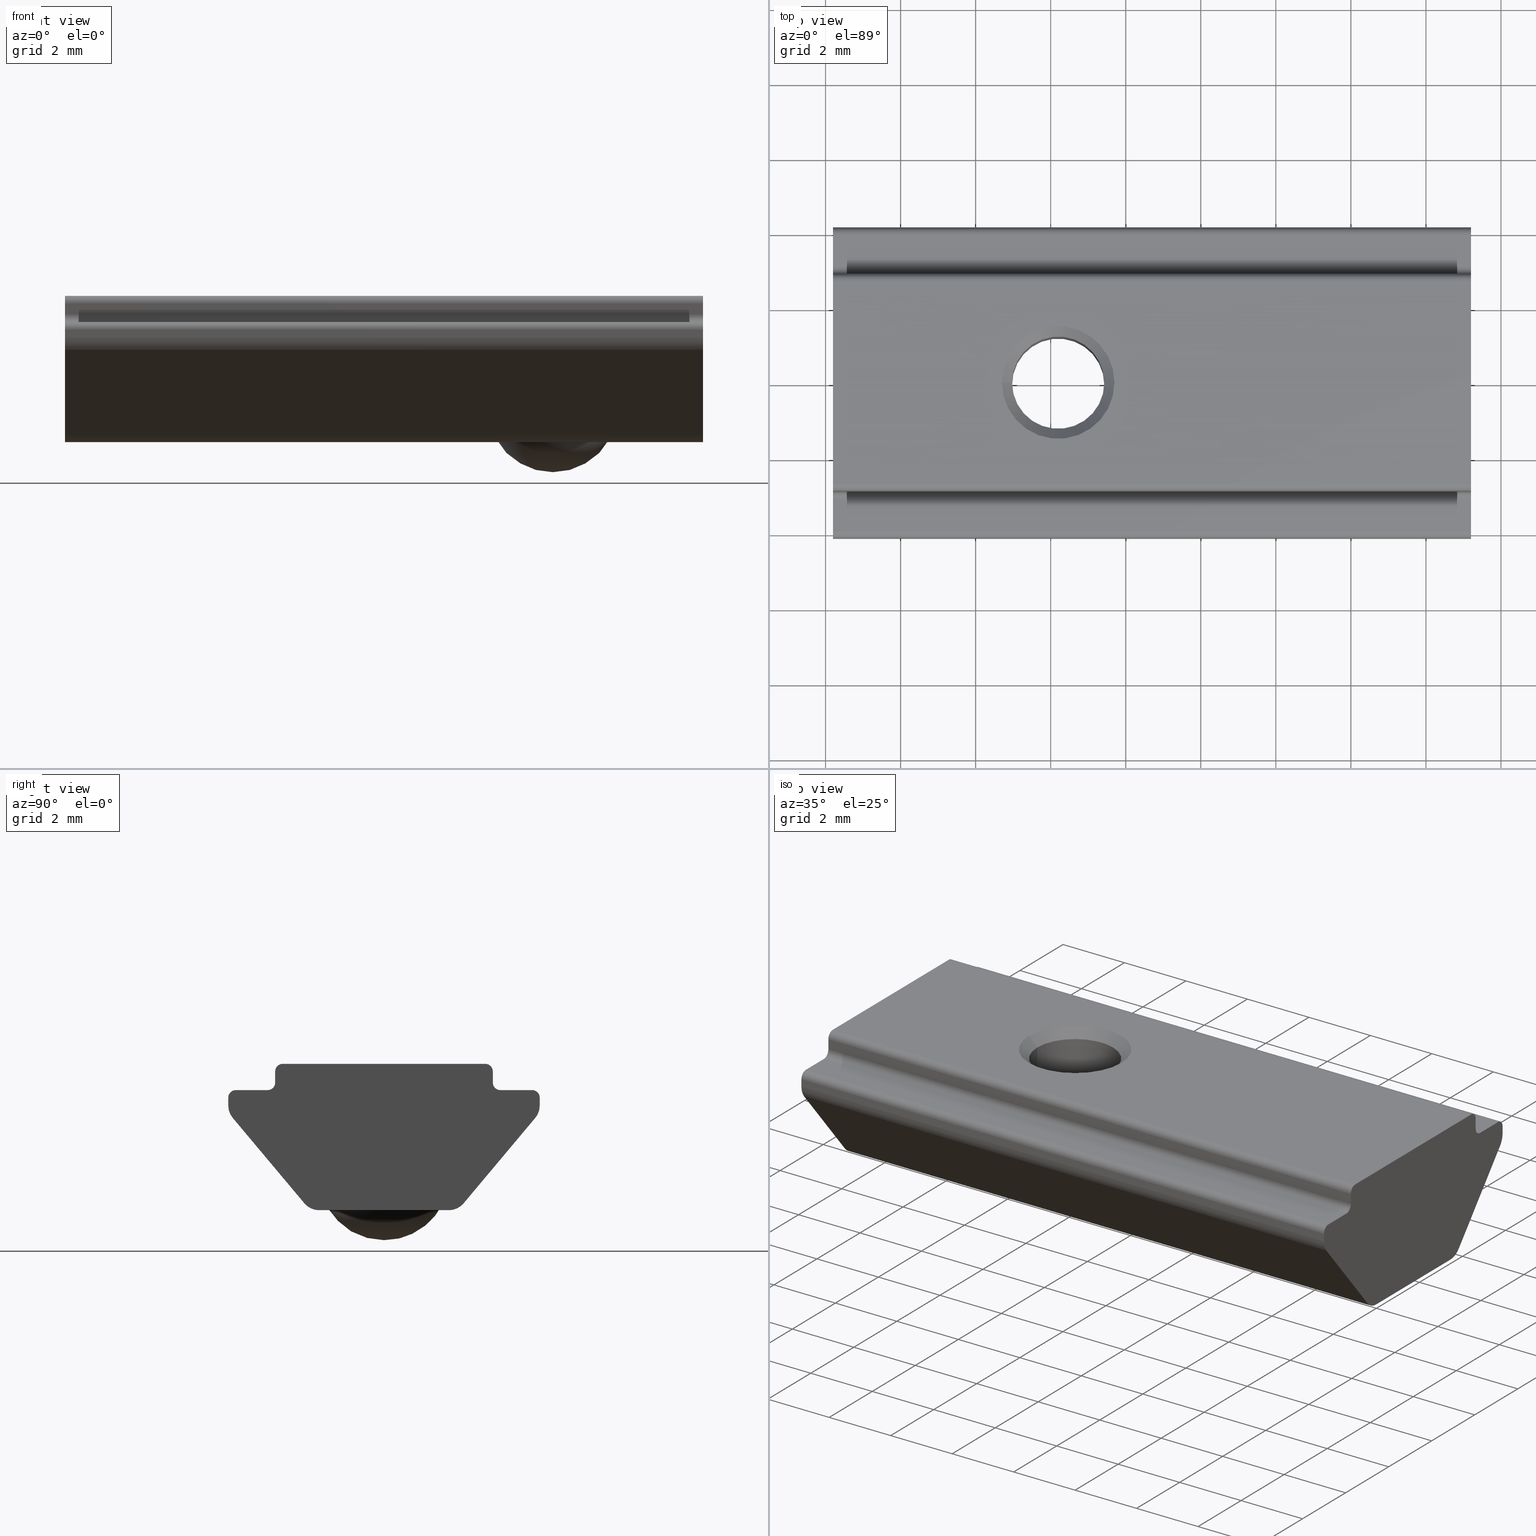
[diagram: canonical four-view strip — front | top / right | iso, engineering-drawing reading convention]
A machine part, canonical four-view strip (front | top / right | iso — engineering-drawing reading convention). The complete STEP part file that produces these views, byte-faithful:
ISO-10303-21;
HEADER;
/* Generated by software containing ST-Developer
 * from STEP Tools, Inc. (www.steptools.com) 
 */

FILE_DESCRIPTION(
/* description */ ('STEP AP214'),
/* implementation_level */ '2;1');

FILE_NAME(
/* name */ 'M3-2020-nut.step',
/* time_stamp */ '2024-09-27T19:50:09+02:00',
/* author */ (''),
/* organization */ (''),
/* preprocessor_version */ 'ST-DEVELOPER v20',
/* originating_system */ 'Autodesk Translation Framework v13.20.0.188',

/* authorisation */ '');

FILE_SCHEMA (('AUTOMOTIVE_DESIGN { 1 0 10303 214 3 1 1 }'));
ENDSEC;

DATA;
#10=MECHANICAL_DESIGN_GEOMETRIC_PRESENTATION_REPRESENTATION('',(#13),#960);
#11=SHAPE_REPRESENTATION_RELATIONSHIP('SRR','None',#967,#12);
#12=ADVANCED_BREP_SHAPE_REPRESENTATION('',(#14),#959);
#13=STYLED_ITEM('',(#977),#14);
#14=MANIFOLD_SOLID_BREP('Body1',#546);
#15=SPHERICAL_SURFACE('',#617,1.75);
#16=CONICAL_SURFACE('',#608,1.5,0.785398163397448);
#17=CONICAL_SURFACE('',#613,1.2295,0.785398163397449);
#18=B_SPLINE_CURVE_WITH_KNOTS('',3,(#801,#802,#803,#804,#805,#806,#807),
 .UNSPECIFIED.,.F.,.F.,(4,3,4),(-0.022314094032762,0.,0.0223140940327621),
 .UNSPECIFIED.);
#19=B_SPLINE_CURVE_WITH_KNOTS('',3,(#817,#818,#819,#820,#821,#822),
 .UNSPECIFIED.,.F.,.F.,(4,2,4),(0.294038686709126,0.316352780741888,0.33866687477465),
 .UNSPECIFIED.);
#20=CYLINDRICAL_SURFACE('',#564,0.499999999999999);
#21=CYLINDRICAL_SURFACE('',#567,0.499999999999998);
#22=CYLINDRICAL_SURFACE('',#573,0.499999999999989);
#23=CYLINDRICAL_SURFACE('',#577,0.2);
#24=CYLINDRICAL_SURFACE('',#581,0.200000000000001);
#25=CYLINDRICAL_SURFACE('',#585,0.2);
#26=CYLINDRICAL_SURFACE('',#590,0.2);
#27=CYLINDRICAL_SURFACE('',#594,0.200000000000001);
#28=CYLINDRICAL_SURFACE('',#598,0.199999999999999);
#29=CYLINDRICAL_SURFACE('',#602,0.499999999999994);
#30=CYLINDRICAL_SURFACE('',#611,1.2295);
#31=CYLINDRICAL_SURFACE('',#614,1.75);
#32=FACE_BOUND('',#63,.T.);
#33=FACE_BOUND('',#76,.T.);
#34=FACE_OUTER_BOUND('',#62,.T.);
#35=FACE_OUTER_BOUND('',#64,.T.);
#36=FACE_OUTER_BOUND('',#65,.T.);
#37=FACE_OUTER_BOUND('',#66,.T.);
#38=FACE_OUTER_BOUND('',#67,.T.);
#39=FACE_OUTER_BOUND('',#68,.T.);
#40=FACE_OUTER_BOUND('',#69,.T.);
#41=FACE_OUTER_BOUND('',#70,.T.);
#42=FACE_OUTER_BOUND('',#71,.T.);
#43=FACE_OUTER_BOUND('',#72,.T.);
#44=FACE_OUTER_BOUND('',#73,.T.);
#45=FACE_OUTER_BOUND('',#74,.T.);
#46=FACE_OUTER_BOUND('',#75,.T.);
#47=FACE_OUTER_BOUND('',#77,.T.);
#48=FACE_OUTER_BOUND('',#78,.T.);
#49=FACE_OUTER_BOUND('',#79,.T.);
#50=FACE_OUTER_BOUND('',#80,.T.);
#51=FACE_OUTER_BOUND('',#81,.T.);
#52=FACE_OUTER_BOUND('',#82,.T.);
#53=FACE_OUTER_BOUND('',#83,.T.);
#54=FACE_OUTER_BOUND('',#84,.T.);
#55=FACE_OUTER_BOUND('',#85,.T.);
#56=FACE_OUTER_BOUND('',#86,.T.);
#57=FACE_OUTER_BOUND('',#87,.T.);
#58=FACE_OUTER_BOUND('',#88,.T.);
#59=FACE_OUTER_BOUND('',#89,.T.);
#60=FACE_OUTER_BOUND('',#90,.T.);
#61=FACE_OUTER_BOUND('',#91,.T.);
#62=EDGE_LOOP('',(#347,#348,#349,#350,#351));
#63=EDGE_LOOP('',(#352));
#64=EDGE_LOOP('',(#353,#354,#355,#356,#357,#358));
#65=EDGE_LOOP('',(#359,#360,#361,#362,#363,#364));
#66=EDGE_LOOP('',(#365,#366,#367,#368));
#67=EDGE_LOOP('',(#369,#370,#371,#372));
#68=EDGE_LOOP('',(#373,#374,#375,#376));
#69=EDGE_LOOP('',(#377,#378,#379,#380));
#70=EDGE_LOOP('',(#381,#382,#383,#384));
#71=EDGE_LOOP('',(#385,#386,#387,#388));
#72=EDGE_LOOP('',(#389,#390,#391,#392));
#73=EDGE_LOOP('',(#393,#394,#395,#396));
#74=EDGE_LOOP('',(#397,#398,#399,#400));
#75=EDGE_LOOP('',(#401,#402,#403,#404));
#76=EDGE_LOOP('',(#405));
#77=EDGE_LOOP('',(#406,#407,#408,#409));
#78=EDGE_LOOP('',(#410,#411,#412,#413));
#79=EDGE_LOOP('',(#414,#415,#416,#417));
#80=EDGE_LOOP('',(#418,#419,#420,#421));
#81=EDGE_LOOP('',(#422,#423,#424,#425));
#82=EDGE_LOOP('',(#426,#427,#428,#429));
#83=EDGE_LOOP('',(#430,#431,#432,#433));
#84=EDGE_LOOP('',(#434,#435,#436,#437));
#85=EDGE_LOOP('',(#438,#439,#440,#441,#442,#443,#444,#445,#446,#447,#448,
#449,#450,#451,#452,#453,#454,#455,#456,#457));
#86=EDGE_LOOP('',(#458,#459,#460,#461,#462,#463,#464,#465,#466,#467,#468,
#469,#470,#471,#472,#473,#474,#475,#476,#477));
#87=EDGE_LOOP('',(#478,#479,#480,#481,#482));
#88=EDGE_LOOP('',(#483,#484,#485,#486,#487));
#89=EDGE_LOOP('',(#488,#489,#490,#491));
#90=EDGE_LOOP('',(#492,#493,#494,#495,#496,#497,#498,#499,#500));
#91=EDGE_LOOP('',(#501,#502,#503,#504));
#92=LINE('',#793,#138);
#93=LINE('',#795,#139);
#94=LINE('',#796,#140);
#95=LINE('',#809,#141);
#96=LINE('',#813,#142);
#97=LINE('',#826,#143);
#98=LINE('',#829,#144);
#99=LINE('',#832,#145);
#100=LINE('',#835,#146);
#101=LINE('',#837,#147);
#102=LINE('',#838,#148);
#103=LINE('',#843,#149);
#104=LINE('',#847,#150);
#105=LINE('',#849,#151);
#106=LINE('',#850,#152);
#107=LINE('',#855,#153);
#108=LINE('',#859,#154);
#109=LINE('',#861,#155);
#110=LINE('',#862,#156);
#111=LINE('',#867,#157);
#112=LINE('',#871,#158);
#113=LINE('',#873,#159);
#114=LINE('',#874,#160);
#115=LINE('',#879,#161);
#116=LINE('',#883,#162);
#117=LINE('',#885,#163);
#118=LINE('',#886,#164);
#119=LINE('',#893,#165);
#120=LINE('',#897,#166);
#121=LINE('',#899,#167);
#122=LINE('',#900,#168);
#123=LINE('',#905,#169);
#124=LINE('',#909,#170);
#125=LINE('',#911,#171);
#126=LINE('',#912,#172);
#127=LINE('',#917,#173);
#128=LINE('',#921,#174);
#129=LINE('',#923,#175);
#130=LINE('',#924,#176);
#131=LINE('',#929,#177);
#132=LINE('',#932,#178);
#133=LINE('',#933,#179);
#134=LINE('',#941,#180);
#135=LINE('',#944,#181);
#136=LINE('',#947,#182);
#137=LINE('',#950,#183);
#138=VECTOR('',#627,1000.);
#139=VECTOR('',#628,1000.);
#140=VECTOR('',#629,1000.);
#141=VECTOR('',#634,1000.);
#142=VECTOR('',#637,1000.);
#143=VECTOR('',#644,1000.);
#144=VECTOR('',#647,1000.);
#145=VECTOR('',#652,1000.);
#146=VECTOR('',#655,1000.);
#147=VECTOR('',#656,1000.);
#148=VECTOR('',#657,1000.);
#149=VECTOR('',#662,1000.);
#150=VECTOR('',#667,1000.);
#151=VECTOR('',#668,1000.);
#152=VECTOR('',#669,1000.);
#153=VECTOR('',#674,1000.);
#154=VECTOR('',#679,1000.);
#155=VECTOR('',#680,1000.);
#156=VECTOR('',#681,1000.);
#157=VECTOR('',#686,1000.);
#158=VECTOR('',#691,1000.);
#159=VECTOR('',#692,1000.);
#160=VECTOR('',#693,1000.);
#161=VECTOR('',#698,1000.);
#162=VECTOR('',#703,1000.);
#163=VECTOR('',#704,1000.);
#164=VECTOR('',#705,1000.);
#165=VECTOR('',#712,1000.);
#166=VECTOR('',#717,1000.);
#167=VECTOR('',#718,1000.);
#168=VECTOR('',#719,1000.);
#169=VECTOR('',#724,1000.);
#170=VECTOR('',#729,1000.);
#171=VECTOR('',#730,1000.);
#172=VECTOR('',#731,1000.);
#173=VECTOR('',#736,1000.);
#174=VECTOR('',#741,1000.);
#175=VECTOR('',#742,1000.);
#176=VECTOR('',#743,1000.);
#177=VECTOR('',#748,1000.);
#178=VECTOR('',#753,1000.);
#179=VECTOR('',#754,1000.);
#180=VECTOR('',#765,1.5);
#181=VECTOR('',#768,1.2295);
#182=VECTOR('',#773,1.2295);
#183=VECTOR('',#776,1.75);
#184=CIRCLE('',#561,1.75);
#185=CIRCLE('',#562,1.75);
#186=CIRCLE('',#563,1.5);
#187=CIRCLE('',#565,0.499999999999999);
#188=CIRCLE('',#566,0.499999999999999);
#189=CIRCLE('',#568,0.499999999999998);
#190=CIRCLE('',#569,0.499999999999998);
#191=CIRCLE('',#571,1.75);
#192=CIRCLE('',#574,0.499999999999989);
#193=CIRCLE('',#575,0.499999999999989);
#194=CIRCLE('',#578,0.2);
#195=CIRCLE('',#579,0.2);
#196=CIRCLE('',#582,0.200000000000001);
#197=CIRCLE('',#583,0.200000000000001);
#198=CIRCLE('',#586,0.2);
#199=CIRCLE('',#587,0.2);
#200=CIRCLE('',#589,1.5);
#201=CIRCLE('',#591,0.2);
#202=CIRCLE('',#592,0.2);
#203=CIRCLE('',#595,0.200000000000001);
#204=CIRCLE('',#596,0.200000000000001);
#205=CIRCLE('',#599,0.199999999999999);
#206=CIRCLE('',#600,0.199999999999999);
#207=CIRCLE('',#603,0.499999999999994);
#208=CIRCLE('',#604,0.499999999999994);
#209=CIRCLE('',#609,1.2295);
#210=CIRCLE('',#610,1.2295);
#211=CIRCLE('',#612,1.2295);
#212=CIRCLE('',#615,1.75);
#213=CIRCLE('',#616,1.75);
#214=CIRCLE('',#618,1.75);
#215=VERTEX_POINT('',#787);
#216=VERTEX_POINT('',#788);
#217=VERTEX_POINT('',#790);
#218=VERTEX_POINT('',#792);
#219=VERTEX_POINT('',#794);
#220=VERTEX_POINT('',#797);
#221=VERTEX_POINT('',#800);
#222=VERTEX_POINT('',#808);
#223=VERTEX_POINT('',#810);
#224=VERTEX_POINT('',#812);
#225=VERTEX_POINT('',#816);
#226=VERTEX_POINT('',#823);
#227=VERTEX_POINT('',#825);
#228=VERTEX_POINT('',#827);
#229=VERTEX_POINT('',#834);
#230=VERTEX_POINT('',#836);
#231=VERTEX_POINT('',#840);
#232=VERTEX_POINT('',#842);
#233=VERTEX_POINT('',#846);
#234=VERTEX_POINT('',#848);
#235=VERTEX_POINT('',#852);
#236=VERTEX_POINT('',#854);
#237=VERTEX_POINT('',#858);
#238=VERTEX_POINT('',#860);
#239=VERTEX_POINT('',#864);
#240=VERTEX_POINT('',#866);
#241=VERTEX_POINT('',#870);
#242=VERTEX_POINT('',#872);
#243=VERTEX_POINT('',#876);
#244=VERTEX_POINT('',#878);
#245=VERTEX_POINT('',#882);
#246=VERTEX_POINT('',#884);
#247=VERTEX_POINT('',#887);
#248=VERTEX_POINT('',#890);
#249=VERTEX_POINT('',#892);
#250=VERTEX_POINT('',#896);
#251=VERTEX_POINT('',#898);
#252=VERTEX_POINT('',#902);
#253=VERTEX_POINT('',#904);
#254=VERTEX_POINT('',#908);
#255=VERTEX_POINT('',#910);
#256=VERTEX_POINT('',#914);
#257=VERTEX_POINT('',#916);
#258=VERTEX_POINT('',#920);
#259=VERTEX_POINT('',#922);
#260=VERTEX_POINT('',#926);
#261=VERTEX_POINT('',#928);
#262=VERTEX_POINT('',#937);
#263=VERTEX_POINT('',#938);
#264=VERTEX_POINT('',#943);
#265=VERTEX_POINT('',#949);
#266=VERTEX_POINT('',#951);
#267=VERTEX_POINT('',#955);
#268=EDGE_CURVE('',#215,#216,#184,.T.);
#269=EDGE_CURVE('',#216,#217,#185,.T.);
#270=EDGE_CURVE('',#218,#217,#92,.T.);
#271=EDGE_CURVE('',#219,#218,#93,.T.);
#272=EDGE_CURVE('',#219,#215,#94,.T.);
#273=EDGE_CURVE('',#220,#220,#186,.T.);
#274=EDGE_CURVE('',#217,#221,#18,.T.);
#275=EDGE_CURVE('',#221,#222,#95,.T.);
#276=EDGE_CURVE('',#222,#223,#187,.T.);
#277=EDGE_CURVE('',#224,#223,#96,.T.);
#278=EDGE_CURVE('',#218,#224,#188,.T.);
#279=EDGE_CURVE('',#215,#225,#19,.T.);
#280=EDGE_CURVE('',#226,#219,#189,.T.);
#281=EDGE_CURVE('',#226,#227,#97,.T.);
#282=EDGE_CURVE('',#227,#228,#190,.T.);
#283=EDGE_CURVE('',#225,#228,#98,.T.);
#284=EDGE_CURVE('',#221,#225,#191,.T.);
#285=EDGE_CURVE('',#228,#222,#99,.T.);
#286=EDGE_CURVE('',#223,#229,#100,.T.);
#287=EDGE_CURVE('',#230,#229,#101,.T.);
#288=EDGE_CURVE('',#224,#230,#102,.T.);
#289=EDGE_CURVE('',#229,#231,#192,.T.);
#290=EDGE_CURVE('',#232,#231,#103,.T.);
#291=EDGE_CURVE('',#230,#232,#193,.T.);
#292=EDGE_CURVE('',#231,#233,#104,.T.);
#293=EDGE_CURVE('',#234,#233,#105,.T.);
#294=EDGE_CURVE('',#232,#234,#106,.T.);
#295=EDGE_CURVE('',#233,#235,#194,.T.);
#296=EDGE_CURVE('',#236,#235,#107,.T.);
#297=EDGE_CURVE('',#234,#236,#195,.T.);
#298=EDGE_CURVE('',#235,#237,#108,.T.);
#299=EDGE_CURVE('',#238,#237,#109,.T.);
#300=EDGE_CURVE('',#236,#238,#110,.T.);
#301=EDGE_CURVE('',#239,#237,#196,.T.);
#302=EDGE_CURVE('',#240,#239,#111,.T.);
#303=EDGE_CURVE('',#240,#238,#197,.T.);
#304=EDGE_CURVE('',#239,#241,#112,.T.);
#305=EDGE_CURVE('',#242,#241,#113,.T.);
#306=EDGE_CURVE('',#240,#242,#114,.T.);
#307=EDGE_CURVE('',#241,#243,#198,.T.);
#308=EDGE_CURVE('',#244,#243,#115,.T.);
#309=EDGE_CURVE('',#242,#244,#199,.T.);
#310=EDGE_CURVE('',#243,#245,#116,.T.);
#311=EDGE_CURVE('',#246,#245,#117,.T.);
#312=EDGE_CURVE('',#244,#246,#118,.T.);
#313=EDGE_CURVE('',#247,#247,#200,.T.);
#314=EDGE_CURVE('',#245,#248,#201,.T.);
#315=EDGE_CURVE('',#249,#248,#119,.T.);
#316=EDGE_CURVE('',#246,#249,#202,.T.);
#317=EDGE_CURVE('',#248,#250,#120,.T.);
#318=EDGE_CURVE('',#251,#250,#121,.T.);
#319=EDGE_CURVE('',#249,#251,#122,.T.);
#320=EDGE_CURVE('',#252,#250,#203,.T.);
#321=EDGE_CURVE('',#253,#252,#123,.T.);
#322=EDGE_CURVE('',#253,#251,#204,.T.);
#323=EDGE_CURVE('',#252,#254,#124,.T.);
#324=EDGE_CURVE('',#255,#254,#125,.T.);
#325=EDGE_CURVE('',#253,#255,#126,.T.);
#326=EDGE_CURVE('',#254,#256,#205,.T.);
#327=EDGE_CURVE('',#257,#256,#127,.T.);
#328=EDGE_CURVE('',#255,#257,#206,.T.);
#329=EDGE_CURVE('',#256,#258,#128,.T.);
#330=EDGE_CURVE('',#259,#258,#129,.T.);
#331=EDGE_CURVE('',#257,#259,#130,.T.);
#332=EDGE_CURVE('',#258,#260,#207,.T.);
#333=EDGE_CURVE('',#261,#260,#131,.T.);
#334=EDGE_CURVE('',#259,#261,#208,.T.);
#335=EDGE_CURVE('',#260,#227,#132,.T.);
#336=EDGE_CURVE('',#261,#226,#133,.T.);
#337=EDGE_CURVE('',#262,#263,#209,.T.);
#338=EDGE_CURVE('',#263,#262,#210,.T.);
#339=EDGE_CURVE('',#262,#220,#134,.T.);
#340=EDGE_CURVE('',#263,#264,#135,.T.);
#341=EDGE_CURVE('',#264,#264,#211,.T.);
#342=EDGE_CURVE('',#264,#247,#136,.T.);
#343=EDGE_CURVE('',#216,#265,#137,.T.);
#344=EDGE_CURVE('',#265,#266,#212,.T.);
#345=EDGE_CURVE('',#266,#265,#213,.T.);
#346=EDGE_CURVE('',#266,#267,#214,.T.);
#347=ORIENTED_EDGE('',*,*,#268,.T.);
#348=ORIENTED_EDGE('',*,*,#269,.T.);
#349=ORIENTED_EDGE('',*,*,#270,.F.);
#350=ORIENTED_EDGE('',*,*,#271,.F.);
#351=ORIENTED_EDGE('',*,*,#272,.T.);
#352=ORIENTED_EDGE('',*,*,#273,.T.);
#353=ORIENTED_EDGE('',*,*,#274,.T.);
#354=ORIENTED_EDGE('',*,*,#275,.T.);
#355=ORIENTED_EDGE('',*,*,#276,.T.);
#356=ORIENTED_EDGE('',*,*,#277,.F.);
#357=ORIENTED_EDGE('',*,*,#278,.F.);
#358=ORIENTED_EDGE('',*,*,#270,.T.);
#359=ORIENTED_EDGE('',*,*,#279,.F.);
#360=ORIENTED_EDGE('',*,*,#272,.F.);
#361=ORIENTED_EDGE('',*,*,#280,.F.);
#362=ORIENTED_EDGE('',*,*,#281,.T.);
#363=ORIENTED_EDGE('',*,*,#282,.T.);
#364=ORIENTED_EDGE('',*,*,#283,.F.);
#365=ORIENTED_EDGE('',*,*,#284,.T.);
#366=ORIENTED_EDGE('',*,*,#283,.T.);
#367=ORIENTED_EDGE('',*,*,#285,.T.);
#368=ORIENTED_EDGE('',*,*,#275,.F.);
#369=ORIENTED_EDGE('',*,*,#286,.T.);
#370=ORIENTED_EDGE('',*,*,#287,.F.);
#371=ORIENTED_EDGE('',*,*,#288,.F.);
#372=ORIENTED_EDGE('',*,*,#277,.T.);
#373=ORIENTED_EDGE('',*,*,#289,.T.);
#374=ORIENTED_EDGE('',*,*,#290,.F.);
#375=ORIENTED_EDGE('',*,*,#291,.F.);
#376=ORIENTED_EDGE('',*,*,#287,.T.);
#377=ORIENTED_EDGE('',*,*,#292,.T.);
#378=ORIENTED_EDGE('',*,*,#293,.F.);
#379=ORIENTED_EDGE('',*,*,#294,.F.);
#380=ORIENTED_EDGE('',*,*,#290,.T.);
#381=ORIENTED_EDGE('',*,*,#295,.T.);
#382=ORIENTED_EDGE('',*,*,#296,.F.);
#383=ORIENTED_EDGE('',*,*,#297,.F.);
#384=ORIENTED_EDGE('',*,*,#293,.T.);
#385=ORIENTED_EDGE('',*,*,#298,.T.);
#386=ORIENTED_EDGE('',*,*,#299,.F.);
#387=ORIENTED_EDGE('',*,*,#300,.F.);
#388=ORIENTED_EDGE('',*,*,#296,.T.);
#389=ORIENTED_EDGE('',*,*,#301,.F.);
#390=ORIENTED_EDGE('',*,*,#302,.F.);
#391=ORIENTED_EDGE('',*,*,#303,.T.);
#392=ORIENTED_EDGE('',*,*,#299,.T.);
#393=ORIENTED_EDGE('',*,*,#304,.T.);
#394=ORIENTED_EDGE('',*,*,#305,.F.);
#395=ORIENTED_EDGE('',*,*,#306,.F.);
#396=ORIENTED_EDGE('',*,*,#302,.T.);
#397=ORIENTED_EDGE('',*,*,#307,.T.);
#398=ORIENTED_EDGE('',*,*,#308,.F.);
#399=ORIENTED_EDGE('',*,*,#309,.F.);
#400=ORIENTED_EDGE('',*,*,#305,.T.);
#401=ORIENTED_EDGE('',*,*,#310,.T.);
#402=ORIENTED_EDGE('',*,*,#311,.F.);
#403=ORIENTED_EDGE('',*,*,#312,.F.);
#404=ORIENTED_EDGE('',*,*,#308,.T.);
#405=ORIENTED_EDGE('',*,*,#313,.F.);
#406=ORIENTED_EDGE('',*,*,#314,.T.);
#407=ORIENTED_EDGE('',*,*,#315,.F.);
#408=ORIENTED_EDGE('',*,*,#316,.F.);
#409=ORIENTED_EDGE('',*,*,#311,.T.);
#410=ORIENTED_EDGE('',*,*,#317,.T.);
#411=ORIENTED_EDGE('',*,*,#318,.F.);
#412=ORIENTED_EDGE('',*,*,#319,.F.);
#413=ORIENTED_EDGE('',*,*,#315,.T.);
#414=ORIENTED_EDGE('',*,*,#320,.F.);
#415=ORIENTED_EDGE('',*,*,#321,.F.);
#416=ORIENTED_EDGE('',*,*,#322,.T.);
#417=ORIENTED_EDGE('',*,*,#318,.T.);
#418=ORIENTED_EDGE('',*,*,#323,.T.);
#419=ORIENTED_EDGE('',*,*,#324,.F.);
#420=ORIENTED_EDGE('',*,*,#325,.F.);
#421=ORIENTED_EDGE('',*,*,#321,.T.);
#422=ORIENTED_EDGE('',*,*,#326,.T.);
#423=ORIENTED_EDGE('',*,*,#327,.F.);
#424=ORIENTED_EDGE('',*,*,#328,.F.);
#425=ORIENTED_EDGE('',*,*,#324,.T.);
#426=ORIENTED_EDGE('',*,*,#329,.T.);
#427=ORIENTED_EDGE('',*,*,#330,.F.);
#428=ORIENTED_EDGE('',*,*,#331,.F.);
#429=ORIENTED_EDGE('',*,*,#327,.T.);
#430=ORIENTED_EDGE('',*,*,#332,.T.);
#431=ORIENTED_EDGE('',*,*,#333,.F.);
#432=ORIENTED_EDGE('',*,*,#334,.F.);
#433=ORIENTED_EDGE('',*,*,#330,.T.);
#434=ORIENTED_EDGE('',*,*,#335,.T.);
#435=ORIENTED_EDGE('',*,*,#281,.F.);
#436=ORIENTED_EDGE('',*,*,#336,.F.);
#437=ORIENTED_EDGE('',*,*,#333,.T.);
#438=ORIENTED_EDGE('',*,*,#271,.T.);
#439=ORIENTED_EDGE('',*,*,#278,.T.);
#440=ORIENTED_EDGE('',*,*,#288,.T.);
#441=ORIENTED_EDGE('',*,*,#291,.T.);
#442=ORIENTED_EDGE('',*,*,#294,.T.);
#443=ORIENTED_EDGE('',*,*,#297,.T.);
#444=ORIENTED_EDGE('',*,*,#300,.T.);
#445=ORIENTED_EDGE('',*,*,#303,.F.);
#446=ORIENTED_EDGE('',*,*,#306,.T.);
#447=ORIENTED_EDGE('',*,*,#309,.T.);
#448=ORIENTED_EDGE('',*,*,#312,.T.);
#449=ORIENTED_EDGE('',*,*,#316,.T.);
#450=ORIENTED_EDGE('',*,*,#319,.T.);
#451=ORIENTED_EDGE('',*,*,#322,.F.);
#452=ORIENTED_EDGE('',*,*,#325,.T.);
#453=ORIENTED_EDGE('',*,*,#328,.T.);
#454=ORIENTED_EDGE('',*,*,#331,.T.);
#455=ORIENTED_EDGE('',*,*,#334,.T.);
#456=ORIENTED_EDGE('',*,*,#336,.T.);
#457=ORIENTED_EDGE('',*,*,#280,.T.);
#458=ORIENTED_EDGE('',*,*,#285,.F.);
#459=ORIENTED_EDGE('',*,*,#282,.F.);
#460=ORIENTED_EDGE('',*,*,#335,.F.);
#461=ORIENTED_EDGE('',*,*,#332,.F.);
#462=ORIENTED_EDGE('',*,*,#329,.F.);
#463=ORIENTED_EDGE('',*,*,#326,.F.);
#464=ORIENTED_EDGE('',*,*,#323,.F.);
#465=ORIENTED_EDGE('',*,*,#320,.T.);
#466=ORIENTED_EDGE('',*,*,#317,.F.);
#467=ORIENTED_EDGE('',*,*,#314,.F.);
#468=ORIENTED_EDGE('',*,*,#310,.F.);
#469=ORIENTED_EDGE('',*,*,#307,.F.);
#470=ORIENTED_EDGE('',*,*,#304,.F.);
#471=ORIENTED_EDGE('',*,*,#301,.T.);
#472=ORIENTED_EDGE('',*,*,#298,.F.);
#473=ORIENTED_EDGE('',*,*,#295,.F.);
#474=ORIENTED_EDGE('',*,*,#292,.F.);
#475=ORIENTED_EDGE('',*,*,#289,.F.);
#476=ORIENTED_EDGE('',*,*,#286,.F.);
#477=ORIENTED_EDGE('',*,*,#276,.F.);
#478=ORIENTED_EDGE('',*,*,#337,.T.);
#479=ORIENTED_EDGE('',*,*,#338,.T.);
#480=ORIENTED_EDGE('',*,*,#339,.T.);
#481=ORIENTED_EDGE('',*,*,#273,.F.);
#482=ORIENTED_EDGE('',*,*,#339,.F.);
#483=ORIENTED_EDGE('',*,*,#337,.F.);
#484=ORIENTED_EDGE('',*,*,#338,.F.);
#485=ORIENTED_EDGE('',*,*,#340,.T.);
#486=ORIENTED_EDGE('',*,*,#341,.T.);
#487=ORIENTED_EDGE('',*,*,#340,.F.);
#488=ORIENTED_EDGE('',*,*,#341,.F.);
#489=ORIENTED_EDGE('',*,*,#342,.T.);
#490=ORIENTED_EDGE('',*,*,#313,.T.);
#491=ORIENTED_EDGE('',*,*,#342,.F.);
#492=ORIENTED_EDGE('',*,*,#274,.F.);
#493=ORIENTED_EDGE('',*,*,#269,.F.);
#494=ORIENTED_EDGE('',*,*,#343,.T.);
#495=ORIENTED_EDGE('',*,*,#344,.T.);
#496=ORIENTED_EDGE('',*,*,#345,.T.);
#497=ORIENTED_EDGE('',*,*,#343,.F.);
#498=ORIENTED_EDGE('',*,*,#268,.F.);
#499=ORIENTED_EDGE('',*,*,#279,.T.);
#500=ORIENTED_EDGE('',*,*,#284,.F.);
#501=ORIENTED_EDGE('',*,*,#344,.F.);
#502=ORIENTED_EDGE('',*,*,#345,.F.);
#503=ORIENTED_EDGE('',*,*,#346,.T.);
#504=ORIENTED_EDGE('',*,*,#346,.F.);
#505=PLANE('',#560);
#506=PLANE('',#570);
#507=PLANE('',#572);
#508=PLANE('',#576);
#509=PLANE('',#580);
#510=PLANE('',#584);
#511=PLANE('',#588);
#512=PLANE('',#593);
#513=PLANE('',#597);
#514=PLANE('',#601);
#515=PLANE('',#605);
#516=PLANE('',#606);
#517=PLANE('',#607);
#518=ADVANCED_FACE('',(#34,#32),#505,.F.);
#519=ADVANCED_FACE('',(#35),#20,.T.);
#520=ADVANCED_FACE('',(#36),#21,.T.);
#521=ADVANCED_FACE('',(#37),#506,.F.);
#522=ADVANCED_FACE('',(#38),#507,.F.);
#523=ADVANCED_FACE('',(#39),#22,.T.);
#524=ADVANCED_FACE('',(#40),#508,.F.);
#525=ADVANCED_FACE('',(#41),#23,.T.);
#526=ADVANCED_FACE('',(#42),#509,.F.);
#527=ADVANCED_FACE('',(#43),#24,.F.);
#528=ADVANCED_FACE('',(#44),#510,.F.);
#529=ADVANCED_FACE('',(#45),#25,.T.);
#530=ADVANCED_FACE('',(#46,#33),#511,.F.);
#531=ADVANCED_FACE('',(#47),#26,.T.);
#532=ADVANCED_FACE('',(#48),#512,.F.);
#533=ADVANCED_FACE('',(#49),#27,.F.);
#534=ADVANCED_FACE('',(#50),#513,.F.);
#535=ADVANCED_FACE('',(#51),#28,.T.);
#536=ADVANCED_FACE('',(#52),#514,.F.);
#537=ADVANCED_FACE('',(#53),#29,.T.);
#538=ADVANCED_FACE('',(#54),#515,.F.);
#539=ADVANCED_FACE('',(#55),#516,.T.);
#540=ADVANCED_FACE('',(#56),#517,.F.);
#541=ADVANCED_FACE('',(#57),#16,.F.);
#542=ADVANCED_FACE('',(#58),#30,.F.);
#543=ADVANCED_FACE('',(#59),#17,.F.);
#544=ADVANCED_FACE('',(#60),#31,.F.);
#545=ADVANCED_FACE('',(#61),#15,.T.);
#546=CLOSED_SHELL('',(#518,#519,#520,#521,#522,#523,#524,#525,#526,#527,
#528,#529,#530,#531,#532,#533,#534,#535,#536,#537,#538,#539,#540,#541,#542,
#543,#544,#545));
#547=DERIVED_UNIT_ELEMENT(#549,1.);
#548=DERIVED_UNIT_ELEMENT(#962,-3.);
#549=(
MASS_UNIT()
NAMED_UNIT(*)
SI_UNIT(.KILO.,.GRAM.)
);
#550=DERIVED_UNIT((#547,#548));
#551=MEASURE_REPRESENTATION_ITEM('density measure',
POSITIVE_RATIO_MEASURE(7850.),#550);
#552=PROPERTY_DEFINITION_REPRESENTATION(#557,#554);
#553=PROPERTY_DEFINITION_REPRESENTATION(#558,#555);
#554=REPRESENTATION('material name',(#556),#959);
#555=REPRESENTATION('density',(#551),#959);
#556=DESCRIPTIVE_REPRESENTATION_ITEM('Steel','Steel');
#557=PROPERTY_DEFINITION('material property','material name',#969);
#558=PROPERTY_DEFINITION('material property','density of part',#969);
#559=AXIS2_PLACEMENT_3D('',#785,#619,#620);
#560=AXIS2_PLACEMENT_3D('',#786,#621,#622);
#561=AXIS2_PLACEMENT_3D('',#789,#623,#624);
#562=AXIS2_PLACEMENT_3D('',#791,#625,#626);
#563=AXIS2_PLACEMENT_3D('',#798,#630,#631);
#564=AXIS2_PLACEMENT_3D('',#799,#632,#633);
#565=AXIS2_PLACEMENT_3D('',#811,#635,#636);
#566=AXIS2_PLACEMENT_3D('',#814,#638,#639);
#567=AXIS2_PLACEMENT_3D('',#815,#640,#641);
#568=AXIS2_PLACEMENT_3D('',#824,#642,#643);
#569=AXIS2_PLACEMENT_3D('',#828,#645,#646);
#570=AXIS2_PLACEMENT_3D('',#830,#648,#649);
#571=AXIS2_PLACEMENT_3D('',#831,#650,#651);
#572=AXIS2_PLACEMENT_3D('',#833,#653,#654);
#573=AXIS2_PLACEMENT_3D('',#839,#658,#659);
#574=AXIS2_PLACEMENT_3D('',#841,#660,#661);
#575=AXIS2_PLACEMENT_3D('',#844,#663,#664);
#576=AXIS2_PLACEMENT_3D('',#845,#665,#666);
#577=AXIS2_PLACEMENT_3D('',#851,#670,#671);
#578=AXIS2_PLACEMENT_3D('',#853,#672,#673);
#579=AXIS2_PLACEMENT_3D('',#856,#675,#676);
#580=AXIS2_PLACEMENT_3D('',#857,#677,#678);
#581=AXIS2_PLACEMENT_3D('',#863,#682,#683);
#582=AXIS2_PLACEMENT_3D('',#865,#684,#685);
#583=AXIS2_PLACEMENT_3D('',#868,#687,#688);
#584=AXIS2_PLACEMENT_3D('',#869,#689,#690);
#585=AXIS2_PLACEMENT_3D('',#875,#694,#695);
#586=AXIS2_PLACEMENT_3D('',#877,#696,#697);
#587=AXIS2_PLACEMENT_3D('',#880,#699,#700);
#588=AXIS2_PLACEMENT_3D('',#881,#701,#702);
#589=AXIS2_PLACEMENT_3D('',#888,#706,#707);
#590=AXIS2_PLACEMENT_3D('',#889,#708,#709);
#591=AXIS2_PLACEMENT_3D('',#891,#710,#711);
#592=AXIS2_PLACEMENT_3D('',#894,#713,#714);
#593=AXIS2_PLACEMENT_3D('',#895,#715,#716);
#594=AXIS2_PLACEMENT_3D('',#901,#720,#721);
#595=AXIS2_PLACEMENT_3D('',#903,#722,#723);
#596=AXIS2_PLACEMENT_3D('',#906,#725,#726);
#597=AXIS2_PLACEMENT_3D('',#907,#727,#728);
#598=AXIS2_PLACEMENT_3D('',#913,#732,#733);
#599=AXIS2_PLACEMENT_3D('',#915,#734,#735);
#600=AXIS2_PLACEMENT_3D('',#918,#737,#738);
#601=AXIS2_PLACEMENT_3D('',#919,#739,#740);
#602=AXIS2_PLACEMENT_3D('',#925,#744,#745);
#603=AXIS2_PLACEMENT_3D('',#927,#746,#747);
#604=AXIS2_PLACEMENT_3D('',#930,#749,#750);
#605=AXIS2_PLACEMENT_3D('',#931,#751,#752);
#606=AXIS2_PLACEMENT_3D('',#934,#755,#756);
#607=AXIS2_PLACEMENT_3D('',#935,#757,#758);
#608=AXIS2_PLACEMENT_3D('',#936,#759,#760);
#609=AXIS2_PLACEMENT_3D('',#939,#761,#762);
#610=AXIS2_PLACEMENT_3D('',#940,#763,#764);
#611=AXIS2_PLACEMENT_3D('',#942,#766,#767);
#612=AXIS2_PLACEMENT_3D('',#945,#769,#770);
#613=AXIS2_PLACEMENT_3D('',#946,#771,#772);
#614=AXIS2_PLACEMENT_3D('',#948,#774,#775);
#615=AXIS2_PLACEMENT_3D('',#952,#777,#778);
#616=AXIS2_PLACEMENT_3D('',#953,#779,#780);
#617=AXIS2_PLACEMENT_3D('',#954,#781,#782);
#618=AXIS2_PLACEMENT_3D('',#956,#783,#784);
#619=DIRECTION('axis',(0.,0.,1.));
#620=DIRECTION('refdir',(1.,0.,0.));
#621=DIRECTION('center_axis',(-2.22044604925031E-16,0.,1.));
#622=DIRECTION('ref_axis',(1.,0.,2.22044604925031E-16));
#623=DIRECTION('center_axis',(-2.22044604925031E-16,0.,1.));
#624=DIRECTION('ref_axis',(1.,0.,2.22044604925031E-16));
#625=DIRECTION('center_axis',(-2.22044604925031E-16,0.,1.));
#626=DIRECTION('ref_axis',(1.,0.,2.22044604925031E-16));
#627=DIRECTION('',(1.,0.,2.22044604925031E-16));
#628=DIRECTION('',(0.,-1.,0.));
#629=DIRECTION('',(1.,0.,2.22044604925031E-16));
#630=DIRECTION('center_axis',(-2.22044604925031E-16,0.,1.));
#631=DIRECTION('ref_axis',(1.,0.,2.22044604925031E-16));
#632=DIRECTION('center_axis',(1.,0.,2.22044604925031E-16));
#633=DIRECTION('ref_axis',(2.22044604925031E-16,0.,-1.));
#634=DIRECTION('',(1.,0.,2.22044604925031E-16));
#635=DIRECTION('center_axis',(-1.,0.,-2.22044604925031E-16));
#636=DIRECTION('ref_axis',(-2.22044604925031E-16,0.,1.));
#637=DIRECTION('',(1.,0.,2.22044604925031E-16));
#638=DIRECTION('center_axis',(-1.,0.,-2.22044604925031E-16));
#639=DIRECTION('ref_axis',(-2.22044604925031E-16,0.,1.));
#640=DIRECTION('center_axis',(1.,0.,2.22044604925031E-16));
#641=DIRECTION('ref_axis',(2.22044604925031E-16,0.,-1.));
#642=DIRECTION('center_axis',(-1.,0.,-2.22044604925031E-16));
#643=DIRECTION('ref_axis',(-2.22044604925031E-16,0.,1.));
#644=DIRECTION('',(1.,0.,2.22044604925031E-16));
#645=DIRECTION('center_axis',(-1.,0.,-2.22044604925031E-16));
#646=DIRECTION('ref_axis',(-2.22044604925031E-16,0.,1.));
#647=DIRECTION('',(1.,0.,2.22044604925031E-16));
#648=DIRECTION('center_axis',(-2.22044604925031E-16,0.,1.));
#649=DIRECTION('ref_axis',(1.,0.,2.22044604925031E-16));
#650=DIRECTION('center_axis',(-2.22044604925031E-16,0.,1.));
#651=DIRECTION('ref_axis',(1.,0.,2.22044604925031E-16));
#652=DIRECTION('',(0.,-1.,0.));
#653=DIRECTION('center_axis',(-1.42727520843553E-16,0.766044443118978,0.64278760968654));
#654=DIRECTION('ref_axis',(1.70096035727369E-16,0.64278760968654,-0.766044443118978));
#655=DIRECTION('',(-1.70096035727369E-16,-0.64278760968654,0.766044443118978));
#656=DIRECTION('',(1.,0.,2.22044604925031E-16));
#657=DIRECTION('',(-1.70096035727369E-16,-0.64278760968654,0.766044443118978));
#658=DIRECTION('center_axis',(1.,0.,2.22044604925031E-16));
#659=DIRECTION('ref_axis',(2.22044604925031E-16,0.,-1.));
#660=DIRECTION('center_axis',(-1.,0.,-2.22044604925031E-16));
#661=DIRECTION('ref_axis',(-2.22044604925031E-16,0.,1.));
#662=DIRECTION('',(1.,0.,2.22044604925031E-16));
#663=DIRECTION('center_axis',(-1.,0.,-2.22044604925031E-16));
#664=DIRECTION('ref_axis',(-2.22044604925031E-16,0.,1.));
#665=DIRECTION('center_axis',(0.,1.,0.));
#666=DIRECTION('ref_axis',(-1.,0.,-2.22044604925031E-16));
#667=DIRECTION('',(-2.22044604925031E-16,0.,1.));
#668=DIRECTION('',(1.,0.,2.22044604925031E-16));
#669=DIRECTION('',(-2.22044604925031E-16,0.,1.));
#670=DIRECTION('center_axis',(1.,0.,2.22044604925031E-16));
#671=DIRECTION('ref_axis',(2.22044604925031E-16,0.,-1.));
#672=DIRECTION('center_axis',(-1.,0.,-2.22044604925031E-16));
#673=DIRECTION('ref_axis',(-2.22044604925031E-16,0.,1.));
#674=DIRECTION('',(1.,0.,2.22044604925031E-16));
#675=DIRECTION('center_axis',(-1.,0.,-2.22044604925031E-16));
#676=DIRECTION('ref_axis',(-2.22044604925031E-16,0.,1.));
#677=DIRECTION('center_axis',(2.22044604925031E-16,0.,-1.));
#678=DIRECTION('ref_axis',(-1.,0.,-2.22044604925031E-16));
#679=DIRECTION('',(0.,1.,0.));
#680=DIRECTION('',(1.,0.,2.22044604925031E-16));
#681=DIRECTION('',(0.,1.,0.));
#682=DIRECTION('center_axis',(1.,0.,2.22044604925031E-16));
#683=DIRECTION('ref_axis',(2.22044604925031E-16,0.,-1.));
#684=DIRECTION('center_axis',(-1.,0.,-2.22044604925031E-16));
#685=DIRECTION('ref_axis',(-2.22044604925031E-16,0.,1.));
#686=DIRECTION('',(1.,0.,2.22044604925031E-16));
#687=DIRECTION('center_axis',(-1.,0.,-2.22044604925031E-16));
#688=DIRECTION('ref_axis',(-2.22044604925031E-16,0.,1.));
#689=DIRECTION('center_axis',(0.,1.,0.));
#690=DIRECTION('ref_axis',(-1.,0.,-2.22044604925031E-16));
#691=DIRECTION('',(-2.22044604925031E-16,0.,1.));
#692=DIRECTION('',(1.,0.,2.22044604925031E-16));
#693=DIRECTION('',(-2.22044604925031E-16,0.,1.));
#694=DIRECTION('center_axis',(1.,0.,2.22044604925031E-16));
#695=DIRECTION('ref_axis',(2.22044604925031E-16,0.,-1.));
#696=DIRECTION('center_axis',(-1.,0.,-2.22044604925031E-16));
#697=DIRECTION('ref_axis',(-2.22044604925031E-16,0.,1.));
#698=DIRECTION('',(1.,0.,2.22044604925031E-16));
#699=DIRECTION('center_axis',(-1.,0.,-2.22044604925031E-16));
#700=DIRECTION('ref_axis',(-2.22044604925031E-16,0.,1.));
#701=DIRECTION('center_axis',(2.22044604925031E-16,0.,-1.));
#702=DIRECTION('ref_axis',(-1.,0.,-2.22044604925031E-16));
#703=DIRECTION('',(0.,1.,0.));
#704=DIRECTION('',(1.,0.,2.22044604925031E-16));
#705=DIRECTION('',(0.,1.,0.));
#706=DIRECTION('center_axis',(-2.22044604925031E-16,0.,1.));
#707=DIRECTION('ref_axis',(1.,0.,2.22044604925031E-16));
#708=DIRECTION('center_axis',(1.,0.,2.22044604925031E-16));
#709=DIRECTION('ref_axis',(2.22044604925031E-16,0.,-1.));
#710=DIRECTION('center_axis',(-1.,0.,-2.22044604925031E-16));
#711=DIRECTION('ref_axis',(-2.22044604925031E-16,0.,1.));
#712=DIRECTION('',(1.,0.,2.22044604925031E-16));
#713=DIRECTION('center_axis',(-1.,0.,-2.22044604925031E-16));
#714=DIRECTION('ref_axis',(-2.22044604925031E-16,0.,1.));
#715=DIRECTION('center_axis',(0.,-1.,0.));
#716=DIRECTION('ref_axis',(1.,0.,2.22044604925031E-16));
#717=DIRECTION('',(2.22044604925031E-16,0.,-1.));
#718=DIRECTION('',(1.,0.,2.22044604925031E-16));
#719=DIRECTION('',(2.22044604925031E-16,0.,-1.));
#720=DIRECTION('center_axis',(1.,0.,2.22044604925031E-16));
#721=DIRECTION('ref_axis',(2.22044604925031E-16,0.,-1.));
#722=DIRECTION('center_axis',(-1.,0.,-2.22044604925031E-16));
#723=DIRECTION('ref_axis',(-2.22044604925031E-16,0.,1.));
#724=DIRECTION('',(1.,0.,2.22044604925031E-16));
#725=DIRECTION('center_axis',(-1.,0.,-2.22044604925031E-16));
#726=DIRECTION('ref_axis',(-2.22044604925031E-16,0.,1.));
#727=DIRECTION('center_axis',(2.22044604925031E-16,0.,-1.));
#728=DIRECTION('ref_axis',(-1.,0.,-2.22044604925031E-16));
#729=DIRECTION('',(0.,1.,0.));
#730=DIRECTION('',(1.,0.,2.22044604925031E-16));
#731=DIRECTION('',(0.,1.,0.));
#732=DIRECTION('center_axis',(1.,0.,2.22044604925031E-16));
#733=DIRECTION('ref_axis',(2.22044604925031E-16,0.,-1.));
#734=DIRECTION('center_axis',(-1.,0.,-2.22044604925031E-16));
#735=DIRECTION('ref_axis',(-2.22044604925031E-16,0.,1.));
#736=DIRECTION('',(1.,0.,2.22044604925031E-16));
#737=DIRECTION('center_axis',(-1.,0.,-2.22044604925031E-16));
#738=DIRECTION('ref_axis',(-2.22044604925031E-16,0.,1.));
#739=DIRECTION('center_axis',(0.,-1.,0.));
#740=DIRECTION('ref_axis',(1.,0.,2.22044604925031E-16));
#741=DIRECTION('',(2.22044604925031E-16,0.,-1.));
#742=DIRECTION('',(1.,0.,2.22044604925031E-16));
#743=DIRECTION('',(2.22044604925031E-16,0.,-1.));
#744=DIRECTION('center_axis',(1.,0.,2.22044604925031E-16));
#745=DIRECTION('ref_axis',(2.22044604925031E-16,0.,-1.));
#746=DIRECTION('center_axis',(-1.,0.,-2.22044604925031E-16));
#747=DIRECTION('ref_axis',(-2.22044604925031E-16,0.,1.));
#748=DIRECTION('',(1.,0.,2.22044604925031E-16));
#749=DIRECTION('center_axis',(-1.,0.,-2.22044604925031E-16));
#750=DIRECTION('ref_axis',(-2.22044604925031E-16,0.,1.));
#751=DIRECTION('center_axis',(-1.42727520843553E-16,-0.766044443118978,
0.64278760968654));
#752=DIRECTION('ref_axis',(-1.70096035727369E-16,0.64278760968654,0.766044443118978));
#753=DIRECTION('',(1.70096035727369E-16,-0.642787609686539,-0.766044443118978));
#754=DIRECTION('',(1.70096035727369E-16,-0.642787609686539,-0.766044443118978));
#755=DIRECTION('center_axis',(-1.,0.,-2.22044604925031E-16));
#756=DIRECTION('ref_axis',(-2.22044604925031E-16,0.,1.));
#757=DIRECTION('center_axis',(-1.,0.,-2.22044604925031E-16));
#758=DIRECTION('ref_axis',(-2.22044604925031E-16,0.,1.));
#759=DIRECTION('center_axis',(2.22044604925031E-16,0.,-1.));
#760=DIRECTION('ref_axis',(-1.,0.,-2.22044604925031E-16));
#761=DIRECTION('center_axis',(-2.22044604925031E-16,0.,1.));
#762=DIRECTION('ref_axis',(1.,0.,2.22044604925031E-16));
#763=DIRECTION('center_axis',(-2.22044604925031E-16,0.,1.));
#764=DIRECTION('ref_axis',(1.,0.,2.22044604925031E-16));
#765=DIRECTION('',(0.707106781186547,-8.65956056235493E-17,-0.707106781186548));
#766=DIRECTION('center_axis',(-2.22044604925031E-16,0.,1.));
#767=DIRECTION('ref_axis',(1.,0.,2.22044604925031E-16));
#768=DIRECTION('',(-2.22044604925031E-16,0.,1.));
#769=DIRECTION('center_axis',(-2.22044604925031E-16,0.,1.));
#770=DIRECTION('ref_axis',(1.,0.,2.22044604925031E-16));
#771=DIRECTION('center_axis',(-2.22044604925031E-16,0.,1.));
#772=DIRECTION('ref_axis',(1.,0.,2.22044604925031E-16));
#773=DIRECTION('',(-0.707106781186548,-8.65956056235494E-17,0.707106781186547));
#774=DIRECTION('center_axis',(-2.22044604925031E-16,0.,1.));
#775=DIRECTION('ref_axis',(1.,0.,2.22044604925031E-16));
#776=DIRECTION('',(-2.22044604925031E-16,0.,1.));
#777=DIRECTION('center_axis',(-2.22044604925031E-16,0.,1.));
#778=DIRECTION('ref_axis',(1.,0.,2.22044604925031E-16));
#779=DIRECTION('center_axis',(-2.22044604925031E-16,0.,1.));
#780=DIRECTION('ref_axis',(1.,0.,2.22044604925031E-16));
#781=DIRECTION('center_axis',(0.,-6.12323399573676E-17,1.));
#782=DIRECTION('ref_axis',(0.,-1.,0.));
#783=DIRECTION('center_axis',(-1.,0.,-2.22044604925031E-16));
#784=DIRECTION('ref_axis',(0.,1.,0.));
#785=CARTESIAN_POINT('',(0.,0.,0.));
#786=CARTESIAN_POINT('Origin',(-17.8,1.73518712986157,-7.70000000000001));
#787=CARTESIAN_POINT('',(-5.02721272931497,1.73518712986157,-7.70000000000001));
#788=CARTESIAN_POINT('',(-6.55,-2.14313189850787E-16,-7.70000000000001));
#789=CARTESIAN_POINT('Origin',(-4.8,0.,-7.70000000000001));
#790=CARTESIAN_POINT('',(-5.02721272931497,-1.73518712986157,-7.70000000000001));
#791=CARTESIAN_POINT('Origin',(-4.8,0.,-7.70000000000001));
#792=CARTESIAN_POINT('',(-17.8,-1.73518712986157,-7.70000000000001));
#793=CARTESIAN_POINT('',(-17.8,-1.73518712986157,-7.70000000000001));
#794=CARTESIAN_POINT('',(-17.8,1.73518712986157,-7.70000000000001));
#795=CARTESIAN_POINT('',(-17.8,1.73518712986157,-7.70000000000001));
#796=CARTESIAN_POINT('',(-17.8,1.73518712986157,-7.70000000000001));
#797=CARTESIAN_POINT('',(-10.3,0.,-7.70000000000001));
#798=CARTESIAN_POINT('Origin',(-11.8,0.,-7.70000000000001));
#799=CARTESIAN_POINT('Origin',(-17.8,-1.73518712986157,-7.20000000000001));
#800=CARTESIAN_POINT('',(-4.57278727068503,-1.73518712986157,-7.70000000000001));
#801=CARTESIAN_POINT('Ctrl Pts',(-5.02721272931497,-1.73518712986157,-7.70000000000001));
#802=CARTESIAN_POINT('Ctrl Pts',(-4.95072780426874,-1.74520238889164,-7.70000000000001));
#803=CARTESIAN_POINT('Ctrl Pts',(-4.87438031344254,-1.75,-7.6997805307115));
#804=CARTESIAN_POINT('Ctrl Pts',(-4.8,-1.75,-7.6997805307115));
#805=CARTESIAN_POINT('Ctrl Pts',(-4.72561968655746,-1.75,-7.6997805307115));
#806=CARTESIAN_POINT('Ctrl Pts',(-4.64927219573125,-1.74520238889164,-7.70000000000001));
#807=CARTESIAN_POINT('Ctrl Pts',(-4.57278727068503,-1.73518712986157,-7.70000000000001));
#808=CARTESIAN_POINT('',(-0.799999999999996,-1.73518712986157,-7.70000000000001));
#809=CARTESIAN_POINT('',(-17.8,-1.73518712986157,-7.70000000000001));
#810=CARTESIAN_POINT('',(-0.799999999999996,-2.11820935142106,-7.52139380484328));
#811=CARTESIAN_POINT('Origin',(-0.799999999999996,-1.73518712986157,-7.20000000000001));
#812=CARTESIAN_POINT('',(-17.8,-2.11820935142106,-7.52139380484328));
#813=CARTESIAN_POINT('',(-17.8,-2.11820935142106,-7.52139380484328));
#814=CARTESIAN_POINT('Origin',(-17.8,-1.73518712986157,-7.20000000000001));
#815=CARTESIAN_POINT('Origin',(-17.8,1.73518712986157,-7.20000000000001));
#816=CARTESIAN_POINT('',(-4.57278727068503,1.73518712986157,-7.70000000000001));
#817=CARTESIAN_POINT('Ctrl Pts',(-5.02721272931497,1.73518712986157,-7.70000000000001));
#818=CARTESIAN_POINT('Ctrl Pts',(-4.95072780426874,1.74520238889164,-7.70000000000001));
#819=CARTESIAN_POINT('Ctrl Pts',(-4.87438031344254,1.75,-7.6997805307115));
#820=CARTESIAN_POINT('Ctrl Pts',(-4.72561968655746,1.75,-7.6997805307115));
#821=CARTESIAN_POINT('Ctrl Pts',(-4.64927219573125,1.74520238889164,-7.70000000000001));
#822=CARTESIAN_POINT('Ctrl Pts',(-4.57278727068503,1.73518712986157,-7.70000000000001));
#823=CARTESIAN_POINT('',(-17.8,2.11820935142106,-7.52139380484328));
#824=CARTESIAN_POINT('Origin',(-17.8,1.73518712986157,-7.20000000000001));
#825=CARTESIAN_POINT('',(-0.799999999999996,2.11820935142106,-7.52139380484328));
#826=CARTESIAN_POINT('',(-17.8,2.11820935142106,-7.52139380484328));
#827=CARTESIAN_POINT('',(-0.799999999999996,1.73518712986157,-7.70000000000001));
#828=CARTESIAN_POINT('Origin',(-0.799999999999996,1.73518712986157,-7.20000000000001));
#829=CARTESIAN_POINT('',(-17.8,1.73518712986157,-7.70000000000001));
#830=CARTESIAN_POINT('Origin',(-17.8,1.73518712986157,-7.70000000000001));
#831=CARTESIAN_POINT('Origin',(-4.8,0.,-7.70000000000001));
#832=CARTESIAN_POINT('',(-0.799999999999996,1.73518712986157,-7.70000000000001));
#833=CARTESIAN_POINT('Origin',(-17.8,-2.11820935142106,-7.52139380484328));
#834=CARTESIAN_POINT('',(-0.799999999999996,-4.03302222155949,-5.23940868771018));
#835=CARTESIAN_POINT('',(-0.799999999999996,-2.11820935142106,-7.52139380484328));
#836=CARTESIAN_POINT('',(-17.8,-4.03302222155949,-5.23940868771018));
#837=CARTESIAN_POINT('',(-17.8,-4.03302222155949,-5.23940868771018));
#838=CARTESIAN_POINT('',(-17.8,-2.11820935142106,-7.52139380484328));
#839=CARTESIAN_POINT('Origin',(-17.8,-3.65000000000001,-4.91801488286691));
#840=CARTESIAN_POINT('',(-0.799999999999997,-4.15,-4.91801488286691));
#841=CARTESIAN_POINT('Origin',(-0.799999999999997,-3.65000000000001,-4.91801488286691));
#842=CARTESIAN_POINT('',(-17.8,-4.15,-4.91801488286691));
#843=CARTESIAN_POINT('',(-17.8,-4.15,-4.91801488286691));
#844=CARTESIAN_POINT('Origin',(-17.8,-3.65000000000001,-4.91801488286691));
#845=CARTESIAN_POINT('Origin',(-17.8,-4.15,-4.91801488286691));
#846=CARTESIAN_POINT('',(-0.799999999999997,-4.15,-4.70000000000001));
#847=CARTESIAN_POINT('',(-0.799999999999997,-4.15,-4.91801488286691));
#848=CARTESIAN_POINT('',(-17.8,-4.15,-4.70000000000001));
#849=CARTESIAN_POINT('',(-17.8,-4.15,-4.70000000000001));
#850=CARTESIAN_POINT('',(-17.8,-4.15,-4.91801488286691));
#851=CARTESIAN_POINT('Origin',(-17.8,-3.95,-4.70000000000001));
#852=CARTESIAN_POINT('',(-0.799999999999997,-3.95,-4.50000000000001));
#853=CARTESIAN_POINT('Origin',(-0.799999999999997,-3.95,-4.70000000000001));
#854=CARTESIAN_POINT('',(-17.8,-3.95,-4.50000000000001));
#855=CARTESIAN_POINT('',(-17.8,-3.95,-4.50000000000001));
#856=CARTESIAN_POINT('Origin',(-17.8,-3.95,-4.70000000000001));
#857=CARTESIAN_POINT('Origin',(-17.8,-3.95,-4.50000000000001));
#858=CARTESIAN_POINT('',(-0.799999999999997,-3.1,-4.50000000000001));
#859=CARTESIAN_POINT('',(-0.799999999999997,-3.95,-4.50000000000001));
#860=CARTESIAN_POINT('',(-17.8,-3.1,-4.50000000000001));
#861=CARTESIAN_POINT('',(-17.8,-3.1,-4.50000000000001));
#862=CARTESIAN_POINT('',(-17.8,-3.95,-4.50000000000001));
#863=CARTESIAN_POINT('Origin',(-17.8,-3.1,-4.30000000000001));
#864=CARTESIAN_POINT('',(-0.799999999999997,-2.9,-4.30000000000001));
#865=CARTESIAN_POINT('Origin',(-0.799999999999997,-3.1,-4.30000000000001));
#866=CARTESIAN_POINT('',(-17.8,-2.9,-4.30000000000001));
#867=CARTESIAN_POINT('',(-17.8,-2.9,-4.30000000000001));
#868=CARTESIAN_POINT('Origin',(-17.8,-3.1,-4.30000000000001));
#869=CARTESIAN_POINT('Origin',(-17.8,-2.9,-4.30000000000001));
#870=CARTESIAN_POINT('',(-0.799999999999997,-2.9,-4.00000000000001));
#871=CARTESIAN_POINT('',(-0.799999999999997,-2.9,-4.30000000000001));
#872=CARTESIAN_POINT('',(-17.8,-2.9,-4.00000000000001));
#873=CARTESIAN_POINT('',(-17.8,-2.9,-4.00000000000001));
#874=CARTESIAN_POINT('',(-17.8,-2.9,-4.30000000000001));
#875=CARTESIAN_POINT('Origin',(-17.8,-2.7,-4.00000000000001));
#876=CARTESIAN_POINT('',(-0.799999999999997,-2.7,-3.80000000000001));
#877=CARTESIAN_POINT('Origin',(-0.799999999999997,-2.7,-4.00000000000001));
#878=CARTESIAN_POINT('',(-17.8,-2.7,-3.80000000000001));
#879=CARTESIAN_POINT('',(-17.8,-2.7,-3.80000000000001));
#880=CARTESIAN_POINT('Origin',(-17.8,-2.7,-4.00000000000001));
#881=CARTESIAN_POINT('Origin',(-17.8,-2.7,-3.80000000000001));
#882=CARTESIAN_POINT('',(-0.799999999999997,2.7,-3.80000000000001));
#883=CARTESIAN_POINT('',(-0.799999999999997,-2.7,-3.80000000000001));
#884=CARTESIAN_POINT('',(-17.8,2.7,-3.80000000000001));
#885=CARTESIAN_POINT('',(-17.8,2.7,-3.80000000000001));
#886=CARTESIAN_POINT('',(-17.8,-2.7,-3.80000000000001));
#887=CARTESIAN_POINT('',(-13.3,-1.83697019872103E-16,-3.80000000000001));
#888=CARTESIAN_POINT('Origin',(-11.8,0.,-3.80000000000001));
#889=CARTESIAN_POINT('Origin',(-17.8,2.7,-4.00000000000001));
#890=CARTESIAN_POINT('',(-0.799999999999997,2.9,-4.00000000000001));
#891=CARTESIAN_POINT('Origin',(-0.799999999999997,2.7,-4.00000000000001));
#892=CARTESIAN_POINT('',(-17.8,2.9,-4.00000000000001));
#893=CARTESIAN_POINT('',(-17.8,2.9,-4.00000000000001));
#894=CARTESIAN_POINT('Origin',(-17.8,2.7,-4.00000000000001));
#895=CARTESIAN_POINT('Origin',(-17.8,2.9,-4.00000000000001));
#896=CARTESIAN_POINT('',(-0.799999999999997,2.9,-4.30000000000001));
#897=CARTESIAN_POINT('',(-0.799999999999997,2.9,-4.00000000000001));
#898=CARTESIAN_POINT('',(-17.8,2.9,-4.30000000000001));
#899=CARTESIAN_POINT('',(-17.8,2.9,-4.30000000000001));
#900=CARTESIAN_POINT('',(-17.8,2.9,-4.00000000000001));
#901=CARTESIAN_POINT('Origin',(-17.8,3.1,-4.30000000000001));
#902=CARTESIAN_POINT('',(-0.799999999999997,3.1,-4.50000000000001));
#903=CARTESIAN_POINT('Origin',(-0.799999999999997,3.1,-4.30000000000001));
#904=CARTESIAN_POINT('',(-17.8,3.1,-4.50000000000001));
#905=CARTESIAN_POINT('',(-17.8,3.1,-4.50000000000001));
#906=CARTESIAN_POINT('Origin',(-17.8,3.1,-4.30000000000001));
#907=CARTESIAN_POINT('Origin',(-17.8,3.1,-4.50000000000001));
#908=CARTESIAN_POINT('',(-0.799999999999997,3.95,-4.50000000000001));
#909=CARTESIAN_POINT('',(-0.799999999999997,3.1,-4.50000000000001));
#910=CARTESIAN_POINT('',(-17.8,3.95,-4.50000000000001));
#911=CARTESIAN_POINT('',(-17.8,3.95,-4.50000000000001));
#912=CARTESIAN_POINT('',(-17.8,3.1,-4.50000000000001));
#913=CARTESIAN_POINT('Origin',(-17.8,3.95,-4.70000000000001));
#914=CARTESIAN_POINT('',(-0.799999999999997,4.15,-4.70000000000001));
#915=CARTESIAN_POINT('Origin',(-0.799999999999997,3.95,-4.70000000000001));
#916=CARTESIAN_POINT('',(-17.8,4.15,-4.70000000000001));
#917=CARTESIAN_POINT('',(-17.8,4.15,-4.70000000000001));
#918=CARTESIAN_POINT('Origin',(-17.8,3.95,-4.70000000000001));
#919=CARTESIAN_POINT('Origin',(-17.8,4.15,-4.70000000000001));
#920=CARTESIAN_POINT('',(-0.799999999999997,4.15,-4.91801488286691));
#921=CARTESIAN_POINT('',(-0.799999999999997,4.15,-4.70000000000001));
#922=CARTESIAN_POINT('',(-17.8,4.15,-4.91801488286691));
#923=CARTESIAN_POINT('',(-17.8,4.15,-4.91801488286691));
#924=CARTESIAN_POINT('',(-17.8,4.15,-4.70000000000001));
#925=CARTESIAN_POINT('Origin',(-17.8,3.65000000000001,-4.91801488286691));
#926=CARTESIAN_POINT('',(-0.799999999999996,4.03302222155949,-5.23940868771018));
#927=CARTESIAN_POINT('Origin',(-0.799999999999997,3.65000000000001,-4.91801488286691));
#928=CARTESIAN_POINT('',(-17.8,4.03302222155949,-5.23940868771018));
#929=CARTESIAN_POINT('',(-17.8,4.03302222155949,-5.23940868771018));
#930=CARTESIAN_POINT('Origin',(-17.8,3.65000000000001,-4.91801488286691));
#931=CARTESIAN_POINT('Origin',(-17.8,4.03302222155949,-5.23940868771018));
#932=CARTESIAN_POINT('',(-0.799999999999996,4.03302222155949,-5.23940868771018));
#933=CARTESIAN_POINT('',(-17.8,4.03302222155949,-5.23940868771018));
#934=CARTESIAN_POINT('Origin',(-17.8,-1.73518712986157,-7.20000000000001));
#935=CARTESIAN_POINT('Origin',(-0.799999999999996,-1.73518712986157,-7.20000000000001));
#936=CARTESIAN_POINT('Origin',(-11.8,0.,-7.70000000000001));
#937=CARTESIAN_POINT('',(-10.5705,0.,-7.42950000000001));
#938=CARTESIAN_POINT('',(-13.0295,-1.50570323955167E-16,-7.42950000000001));
#939=CARTESIAN_POINT('Origin',(-11.8,0.,-7.42950000000001));
#940=CARTESIAN_POINT('Origin',(-11.8,0.,-7.42950000000001));
#941=CARTESIAN_POINT('',(-10.3,-1.83697019872103E-16,-7.70000000000001));
#942=CARTESIAN_POINT('Origin',(-11.8,0.,-3.80000000000001));
#943=CARTESIAN_POINT('',(-13.0295,-1.50570323955167E-16,-4.07050000000001));
#944=CARTESIAN_POINT('',(-13.0295,-1.50570323955167E-16,-3.80000000000001));
#945=CARTESIAN_POINT('Origin',(-11.8,0.,-4.07050000000001));
#946=CARTESIAN_POINT('Origin',(-11.8,0.,-4.07050000000001));
#947=CARTESIAN_POINT('',(-13.0295,-1.50570323955167E-16,-4.07050000000001));
#948=CARTESIAN_POINT('Origin',(-4.8,0.,-6.75000000000001));
#949=CARTESIAN_POINT('',(-6.55,-2.14313189850787E-16,-6.75000000000001));
#950=CARTESIAN_POINT('',(-6.55,-2.14313189850787E-16,-6.75000000000001));
#951=CARTESIAN_POINT('',(-4.8,1.75,-6.75000000000001));
#952=CARTESIAN_POINT('Origin',(-4.8,0.,-6.75000000000001));
#953=CARTESIAN_POINT('Origin',(-4.8,0.,-6.75000000000001));
#954=CARTESIAN_POINT('Origin',(-4.8,3.68628738645072E-15,-6.75));
#955=CARTESIAN_POINT('',(-4.8,3.79344398137611E-15,-8.5));
#956=CARTESIAN_POINT('Origin',(-4.8,3.68628738645072E-15,-6.75));
#957=UNCERTAINTY_MEASURE_WITH_UNIT(LENGTH_MEASURE(0.01),#961,
'DISTANCE_ACCURACY_VALUE',
'Maximum model space distance between geometric entities at asserted c
onnectivities');
#958=UNCERTAINTY_MEASURE_WITH_UNIT(LENGTH_MEASURE(0.01),#961,
'DISTANCE_ACCURACY_VALUE',
'Maximum model space distance between geometric entities at asserted c
onnectivities');
#959=(
GEOMETRIC_REPRESENTATION_CONTEXT(3)
GLOBAL_UNCERTAINTY_ASSIGNED_CONTEXT((#957))
GLOBAL_UNIT_ASSIGNED_CONTEXT((#961,#963,#964))
REPRESENTATION_CONTEXT('','3D')
);
#960=(
GEOMETRIC_REPRESENTATION_CONTEXT(3)
GLOBAL_UNCERTAINTY_ASSIGNED_CONTEXT((#958))
GLOBAL_UNIT_ASSIGNED_CONTEXT((#961,#963,#964))
REPRESENTATION_CONTEXT('','3D')
);
#961=(
LENGTH_UNIT()
NAMED_UNIT(*)
SI_UNIT(.MILLI.,.METRE.)
);
#962=(
LENGTH_UNIT()
NAMED_UNIT(*)
SI_UNIT($,.METRE.)
);
#963=(
NAMED_UNIT(*)
PLANE_ANGLE_UNIT()
SI_UNIT($,.RADIAN.)
);
#964=(
NAMED_UNIT(*)
SI_UNIT($,.STERADIAN.)
SOLID_ANGLE_UNIT()
);
#965=SHAPE_DEFINITION_REPRESENTATION(#966,#967);
#966=PRODUCT_DEFINITION_SHAPE('',$,#969);
#967=SHAPE_REPRESENTATION('',(#559),#959);
#968=PRODUCT_DEFINITION_CONTEXT('part definition',#973,'design');
#969=PRODUCT_DEFINITION('HNTP5-3','M3-2020-nut v0',#970,#968);
#970=PRODUCT_DEFINITION_FORMATION('',$,#975);
#971=PRODUCT_RELATED_PRODUCT_CATEGORY('M3-2020-nut v0','M3-2020-nut v0',
(#975));
#972=APPLICATION_PROTOCOL_DEFINITION('international standard',
'automotive_design',2009,#973);
#973=APPLICATION_CONTEXT(
'Core Data for Automotive Mechanical Design Process');
#974=PRODUCT_CONTEXT('part definition',#973,'mechanical');
#975=PRODUCT('HNTP5-3','M3-2020-nut v0','STEP AP214',(#974));
#976=PRESENTATION_STYLE_ASSIGNMENT((#978));
#977=PRESENTATION_STYLE_ASSIGNMENT((#979));
#978=SURFACE_STYLE_USAGE(.BOTH.,#980);
#979=SURFACE_STYLE_USAGE(.BOTH.,#981);
#980=SURFACE_SIDE_STYLE('',(#982));
#981=SURFACE_SIDE_STYLE('',(#983));
#982=SURFACE_STYLE_FILL_AREA(#984);
#983=SURFACE_STYLE_FILL_AREA(#985);
#984=FILL_AREA_STYLE('Steel - Satin',(#986));
#985=FILL_AREA_STYLE('Opaque(176,176,176)',(#987));
#986=FILL_AREA_STYLE_COLOUR('Steel - Satin',#988);
#987=FILL_AREA_STYLE_COLOUR('Opaque(176,176,176)',#989);
#988=COLOUR_RGB('Steel - Satin',0.627450980392157,0.627450980392157,0.627450980392157);
#989=COLOUR_RGB('Opaque(176,176,176)',0.690196078431373,0.690196078431373,
0.690196078431373);
ENDSEC;
END-ISO-10303-21;
